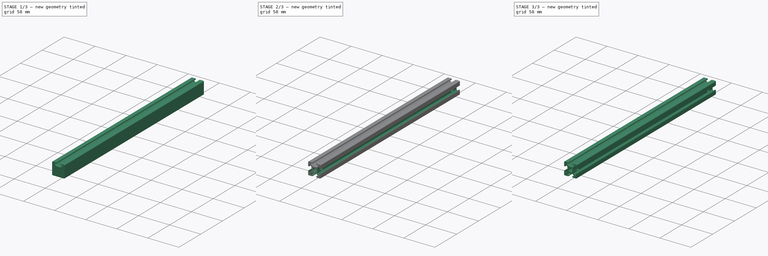
[diagram: build sequence overview — one tinted view per stage of 3, left to right]
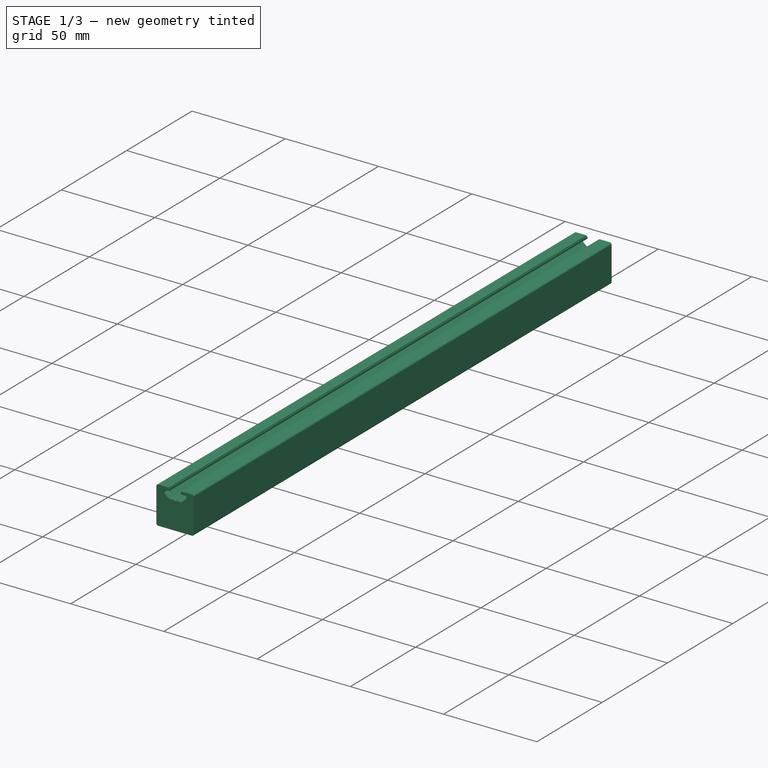
[diagram: stage 1 of 3 — iso view after this stage's code; geometry added in this stage tinted green]
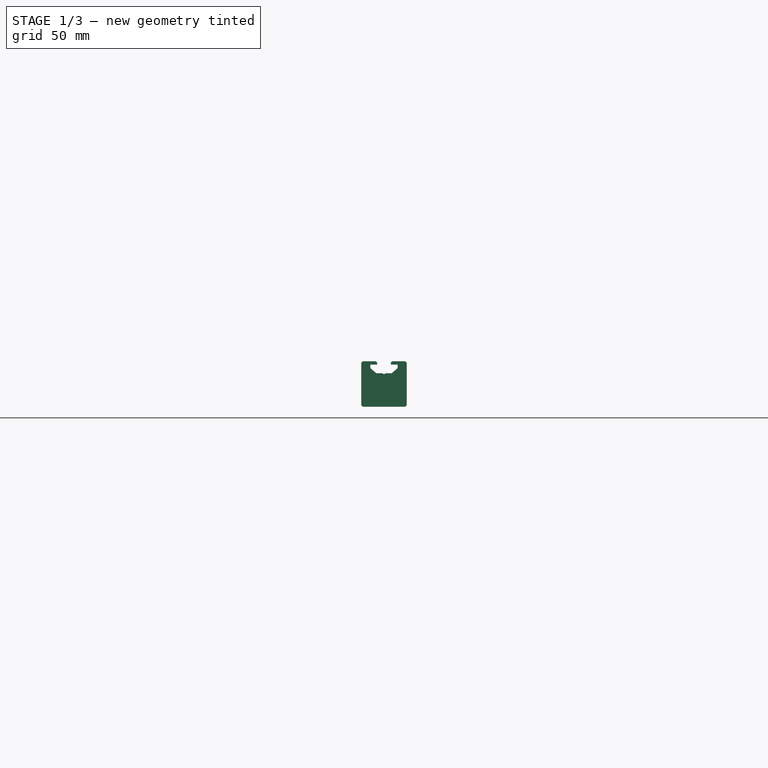
[diagram: stage 1 of 3 — front view after this stage's code; geometry added in this stage tinted green]
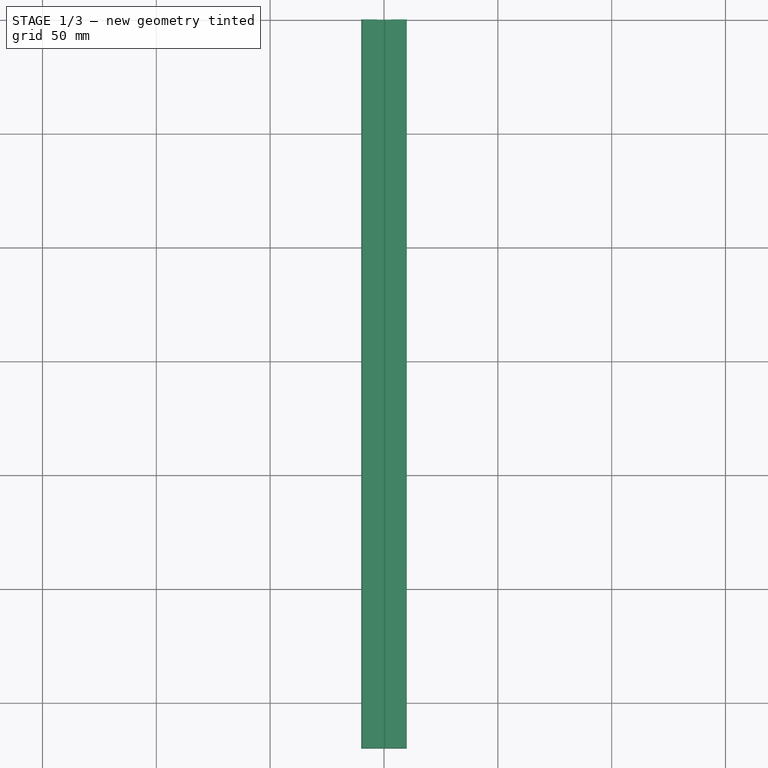
[diagram: stage 1 of 3 — top view after this stage's code; geometry added in this stage tinted green]
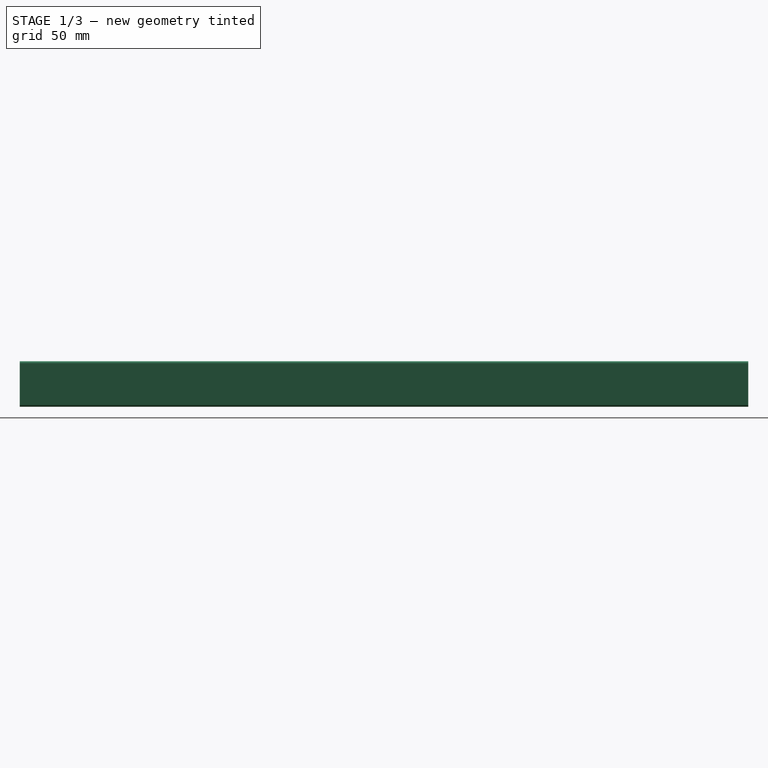
[diagram: stage 1 of 3 — right view after this stage's code; geometry added in this stage tinted green]
FCSTD DOCUMENT  (FreeCAD 0.19R24267 (Git))
Label: tslot32con
License: All rights reserved
LicenseURL: http://en.wikipedia.org/wiki/All_rights_reserved
objects: Sketcher::SketchObject×5, PartDesign::Pocket×5, PartDesign::Pad×1, PartDesign::PolarPattern×1
note: 18 computed .brp shape members not serialized (recipe doc carries the construction recipe); baked Part::Feature solids carry a one-line shape summary decoded from their .brp

FEATURE [Sketcher::SketchObject] Sketch
  FullyConstrained = false
  MapMode = 5
  Placement = pos=(0,0,0) rot=(1,0,0;1.5708rad)
  sketch-geometry (8):
    g0: LineSegment StartX=-9 StartY=10 StartZ=0 EndX=9 EndY=10 EndZ=0
    g1: LineSegment StartX=10 StartY=9 StartZ=0 EndX=10 EndY=-9 EndZ=0
    g2: LineSegment StartX=9 StartY=-10 StartZ=0 EndX=-9 EndY=-10 EndZ=0
    g3: LineSegment StartX=-10 StartY=-9 StartZ=0 EndX=-10 EndY=9 EndZ=0
    g4: ArcOfCircle CenterX=-9 CenterY=9 CenterZ=0 NormalX=0 NormalY=0 NormalZ=1 AngleXU=0 Radius=1 StartAngle=1.5708 EndAngle=3.14159
    g5: ArcOfCircle CenterX=-9 CenterY=-9 CenterZ=0 NormalX=0 NormalY=0 NormalZ=1 AngleXU=0 Radius=1 StartAngle=3.14159 EndAngle=4.71239
    g6: ArcOfCircle CenterX=9 CenterY=-9 CenterZ=0 NormalX=0 NormalY=0 NormalZ=1 AngleXU=0 Radius=1 StartAngle=4.71239 EndAngle=6.28319
    g7: ArcOfCircle CenterX=9 CenterY=9 CenterZ=0 NormalX=0 NormalY=0 NormalZ=1 AngleXU=0 Radius=1 StartAngle=0 EndAngle=1.5708
  constraints (20):
    c: Horizontal(g0)
    c: Horizontal(g2)
    c: Vertical(g1)
    c: Vertical(g3)
    c: Tangent(g0,g4) = 1.5708
    c: Tangent(g3,g4) = 1.5708
    c: Tangent(g3,g5) = 1.5708
    c: Tangent(g2,g5) = 1.5708
    c: Tangent(g2,g6) = 1.5708
    c: Tangent(g1,g6) = 1.5708
    c: Tangent(g0,g7) = 1.5708
    c: Tangent(g1,g7) = 1.5708
    c: Equal(g7,g4)
    c: Equal(g4,g5)
    c: Equal(g5,g6)
    c: Radius(g7) = 1
    c: DistanceX(g1,g3) = -20
    c: DistanceX(g-1,g1) = 10
    c: DistanceY(g0,g2) = -20
    c: DistanceY(g-1,g0) = 10
FEATURE [PartDesign::Pad] Pad
  AllowMultiFace = false
  Direction = (1,1,1)
  Length = 320
  Length2 = 100
  Placement = pos=(0,0,0) rot=(1,0,0;1.5708rad)
  Profile = -> Sketch
  Type = 0
FEATURE [Sketcher::SketchObject] Sketch001
  FullyConstrained = false
  MapMode = 5
  Placement = pos=(0,-320,7.04e-14) rot=(1,0,0;1.5708rad)
  Support = -> [Pad]
  sketch-geometry (17):
    g0: LineSegment StartX=-3.4 StartY=10 StartZ=0 EndX=-3.4 EndY=9.6 EndZ=0
    g1: LineSegment StartX=-3.4 StartY=9.6 StartZ=0 EndX=-3 EndY=9.6 EndZ=0
    g2: LineSegment StartX=-3 StartY=9.6 StartZ=0 EndX=-3 EndY=8.5 EndZ=0
    g3: LineSegment StartX=-3 StartY=8.5 StartZ=0 EndX=-6 EndY=8.5 EndZ=0
    g4: LineSegment StartX=-6 StartY=8.5 StartZ=0 EndX=-6 EndY=7 EndZ=0
    g5: LineSegment StartX=-6 StartY=7 StartZ=0 EndX=-3.35 EndY=4.7 EndZ=0
    g6: LineSegment StartX=-3.35 StartY=4.7 StartZ=0 EndX=-0.65 EndY=4.7 EndZ=0
    g7: LineSegment StartX=-0.65 StartY=4.7 StartZ=0 EndX=0 EndY=4.3 EndZ=0
    g8: LineSegment StartX=0 StartY=4.3 StartZ=0 EndX=0.65 EndY=4.7 EndZ=0
    g9: LineSegment StartX=0.65 StartY=4.7 StartZ=0 EndX=3.35 EndY=4.7 EndZ=0
    g10: LineSegment StartX=3.35 StartY=4.7 StartZ=0 EndX=6 EndY=7 EndZ=0
    g11: LineSegment StartX=6 StartY=7 StartZ=0 EndX=6 EndY=8.5 EndZ=0
    g12: LineSegment StartX=6 StartY=8.5 StartZ=0 EndX=3 EndY=8.5 EndZ=0
    g13: LineSegment StartX=3 StartY=8.5 StartZ=0 EndX=3 EndY=9.6 EndZ=0
    g14: LineSegment StartX=3 StartY=9.6 StartZ=0 EndX=3.4 EndY=9.6 EndZ=0
    g15: LineSegment StartX=3.4 StartY=9.6 StartZ=0 EndX=3.4 EndY=10 EndZ=0
    g16: LineSegment StartX=3.4 StartY=10 StartZ=0 EndX=-3.4 EndY=10 EndZ=0
  constraints (51):
    c: Coincident(g0,g1)
    c: Horizontal(g1)
    c: Coincident(g1,g2)
    c: Vertical(g2)
    c: Coincident(g2,g3)
    c: Horizontal(g3)
    c: Coincident(g3,g4)
    c: Vertical(g4)
    c: Coincident(g4,g5)
    c: Coincident(g5,g6)
    c: Horizontal(g6)
    c: Coincident(g6,g7)
    c: Coincident(g7,g8)
    c: Coincident(g8,g9)
    c: Horizontal(g9)
    c: Coincident(g9,g10)
    c: Coincident(g10,g11)
    c: Coincident(g11,g12)
    c: Horizontal(g12)
    c: Coincident(g12,g13)
    c: Vertical(g13)
    c: Coincident(g13,g14)
    c: Horizontal(g14)
    c: Coincident(g14,g15)
    c: Vertical(g15)
    c: Coincident(g15,g16)
    c: Horizontal(g16)
    c: Vertical(g0)
    c: PointOnObject(g7,g-2)
    c: Coincident(g0,g16)
    c: DistanceX(g2,g12) = 6
    c: DistanceX(g-1,g12) = 3
    c: Vertical(g11)
    c: DistanceY(g4) = -1.5
    c: DistanceY(g11) = 1.5
    c: DistanceY(g13) = 1.1
    c: DistanceY(g2) = -1.1
    c: DistanceY(g15) = 0.4
    c: DistanceY(g0) = -0.4
    c: DistanceY(g-1,g15) = 10
    c: DistanceX(g1) = 0.4
    c: DistanceX(g14) = 0.4
    c: DistanceX(g3) = -3
    c: DistanceX(g12) = -3
    c: DistanceX(g6) = 2.7
    c: DistanceX(g9) = 2.7
    c: DistanceX(g6,g8) = 1.3
    c: DistanceX(g-1,g6) = -0.65
    c: DistanceY(g8) = 0.4
    c: DistanceY(g7) = -0.4
    c: DistanceY(g15,g9) = -5.3
FEATURE [PartDesign::Pocket] Pocket
  AllowMultiFace = false
  Length = 320
  Length2 = 100
  Placement = pos=(0,0,0) rot=(1,0,0;1.5708rad)
  Profile = -> Sketch001
  Type = 0
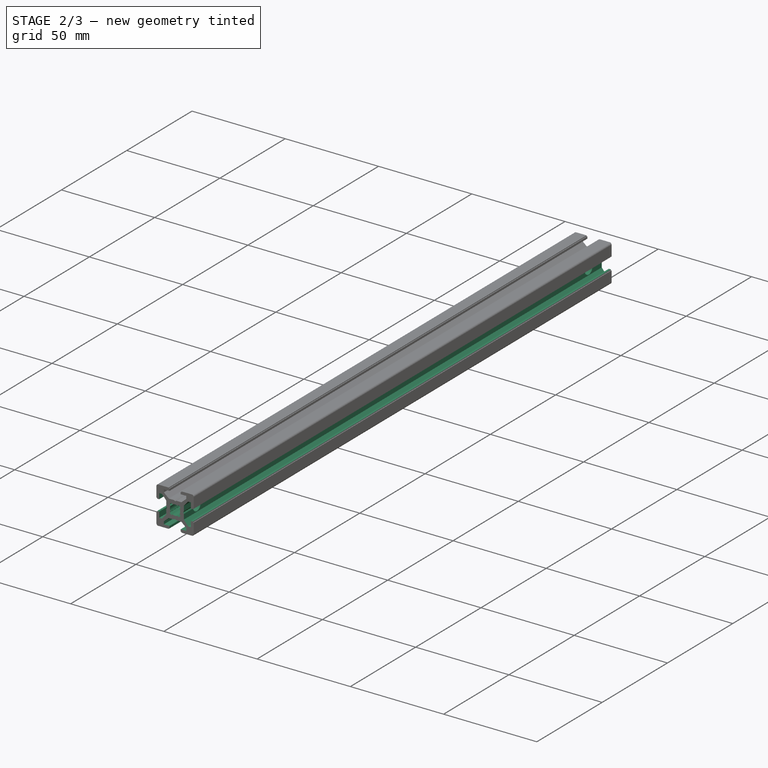
[diagram: stage 2 of 3 — iso view after this stage's code; geometry added in this stage tinted green]
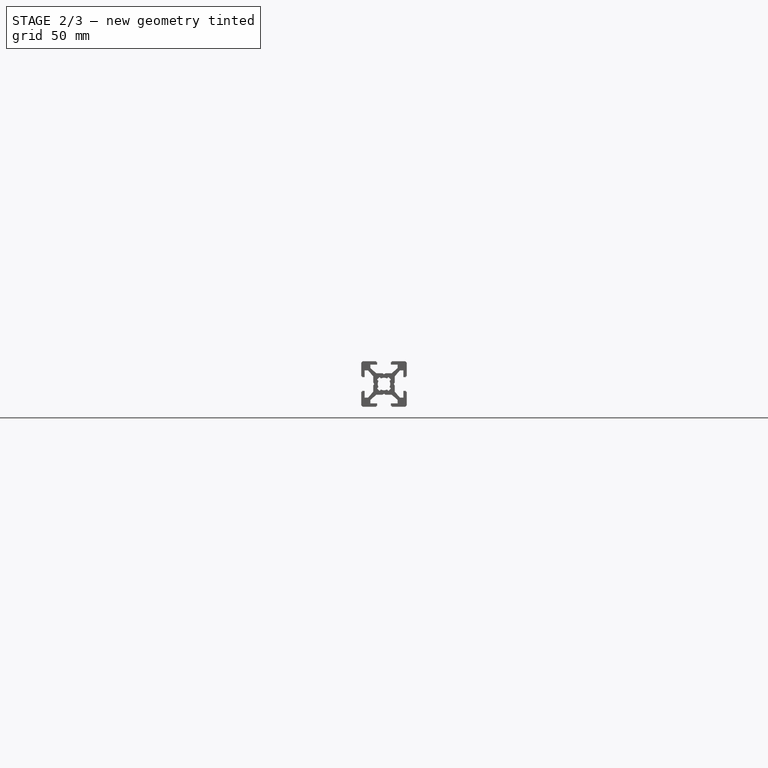
[diagram: stage 2 of 3 — front view after this stage's code; geometry added in this stage tinted green]
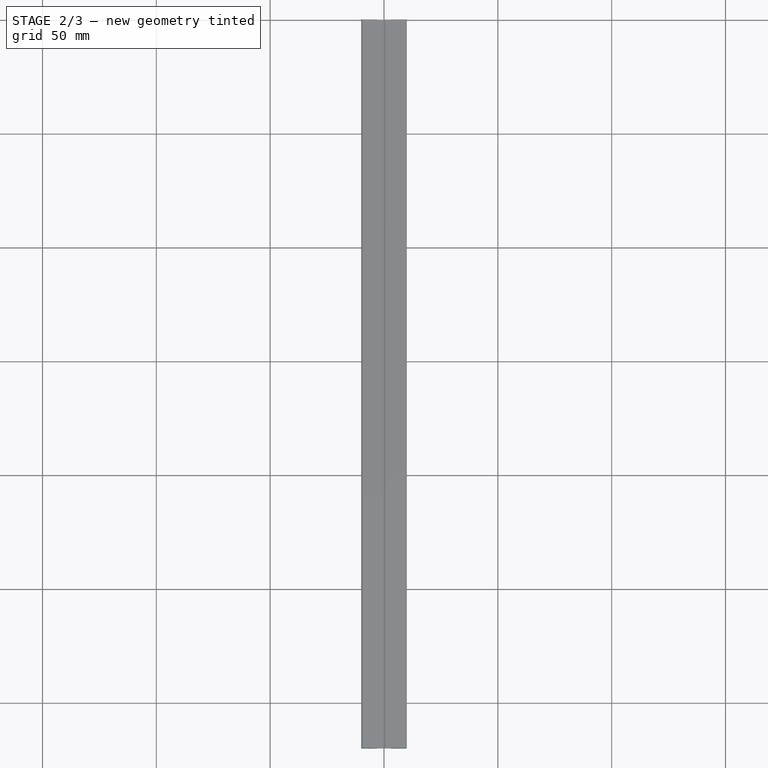
[diagram: stage 2 of 3 — top view after this stage's code; geometry added in this stage tinted green]
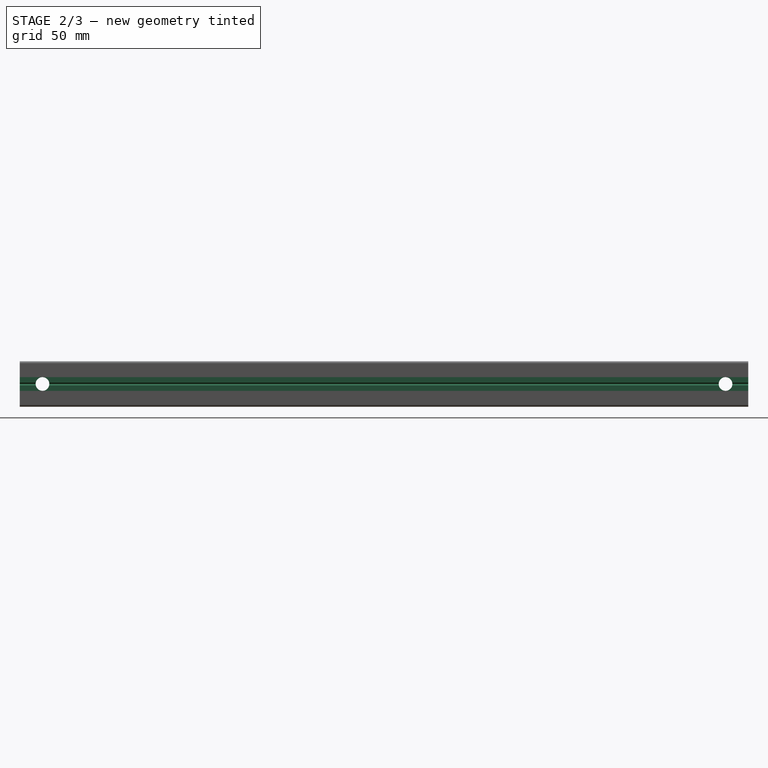
[diagram: stage 2 of 3 — right view after this stage's code; geometry added in this stage tinted green]
FEATURE [PartDesign::PolarPattern] PolarPattern
  Angle = 360
  Axis = -> Sketch001 [N_Axis]
  Occurrences = 4
  Originals = -> [Pocket]
  Placement = pos=(0,0,0) rot=(1,0,0;1.5708rad)
FEATURE [Sketcher::SketchObject] Sketch002
  FullyConstrained = false
  MapMode = 5
  Placement = pos=(0,-320,7.04e-14) rot=(1,0,0;1.5708rad)
  Support = -> [PolarPattern]
  sketch-geometry (20):
    g0: ArcOfCircle CenterX=0 CenterY=0 CenterZ=0 NormalX=0 NormalY=0 NormalZ=1 AngleXU=0 Radius=2.75 StartAngle=1.06162 EndAngle=2.07997
    g1: ArcOfCircle CenterX=0 CenterY=0 CenterZ=0 NormalX=0 NormalY=0 NormalZ=1 AngleXU=0 Radius=2.75 StartAngle=2.63242 EndAngle=3.65076
    g2: ArcOfCircle CenterX=0 CenterY=0 CenterZ=0 NormalX=0 NormalY=0 NormalZ=1 AngleXU=0 Radius=2.75 StartAngle=4.20322 EndAngle=5.22156
    g3: ArcOfCircle CenterX=0 CenterY=0 CenterZ=0 NormalX=0 NormalY=0 NormalZ=1 AngleXU=0 Radius=2.75 StartAngle=5.77401 EndAngle=6.79236
    g4: LineSegment StartX=-2.40116 StartY=1.3405 StartZ=0 EndX=-3.0052 EndY=1.94454 EndZ=0
    g5: LineSegment StartX=-3.0052 StartY=1.94454 StartZ=0 EndX=-1.94454 EndY=3.0052 EndZ=0
    g6: LineSegment StartX=-1.94454 StartY=3.0052 StartZ=0 EndX=-1.3405 EndY=2.40116 EndZ=0
    g7: LineSegment StartX=-2.47487 StartY=2.47487 StartZ=0 EndX=0 EndY=0 EndZ=0
    g8: LineSegment StartX=0 StartY=0 StartZ=0 EndX=-2.47487 EndY=-2.47487 EndZ=0
    g9: LineSegment StartX=0 StartY=0 StartZ=0 EndX=2.47487 EndY=-2.47487 EndZ=0
    g10: LineSegment StartX=0 StartY=0 StartZ=0 EndX=2.47487 EndY=2.47487 EndZ=0
    g11: LineSegment StartX=2.40116 StartY=1.3405 StartZ=0 EndX=3.0052 EndY=1.94454 EndZ=0
    g12: LineSegment StartX=3.0052 StartY=1.94454 StartZ=0 EndX=1.94454 EndY=3.0052 EndZ=0
    g13: LineSegment StartX=1.94454 StartY=3.0052 StartZ=0 EndX=1.3405 EndY=2.40116 EndZ=0
    g14: LineSegment StartX=2.40116 StartY=-1.3405 StartZ=0 EndX=3.0052 EndY=-1.94454 EndZ=0
    g15: LineSegment StartX=3.0052 StartY=-1.94454 StartZ=0 EndX=1.94454 EndY=-3.0052 EndZ=0
    g16: LineSegment StartX=1.94454 StartY=-3.0052 StartZ=0 EndX=1.3405 EndY=-2.40116 EndZ=0
    g17: LineSegment StartX=-1.3405 StartY=-2.40116 StartZ=0 EndX=-1.94454 EndY=-3.0052 EndZ=0
    g18: LineSegment StartX=-1.94454 StartY=-3.0052 StartZ=0 EndX=-3.0052 EndY=-1.94454 EndZ=0
    g19: LineSegment StartX=-3.0052 StartY=-1.94454 StartZ=0 EndX=-2.40116 EndY=-1.3405 EndZ=0
  constraints (60):
    c: Coincident(g3,g-1)
    c: Coincident(g0,g-1)
    c: Coincident(g1,g-1)
    c: Coincident(g2,g-1)
    c: Equal(g0,g3)
    c: Equal(g3,g2)
    c: Equal(g2,g1)
    c: Radius(g0) = 2.75
    c: Coincident(g4,g5)
    c: Coincident(g5,g6)
    c: Perpendicular(g5,g6) = 4.71239
    c: Perpendicular(g4,g5) = 4.71239
    c: Coincident(g0,g6)
    c: Coincident(g1,g4)
    c: Coincident(g7,g-1)
    c: Angle(g-2,g7) = 0.785398
    c: PointOnObject(g7,g5)
    c: Parallel(g7,g6)
    c: Coincident(g8,g-1)
    c: Angle(g7,g8) = 1.5708
    c: Coincident(g9,g-1)
    c: Angle(g8,g9) = 1.5708
    c: Coincident(g10,g-1)
    c: Angle(g9,g10) = 1.5708
    c: Coincident(g11,g12)
    c: Coincident(g12,g13)
    c: Perpendicular(g12,g13) = 1.5708
    c: Perpendicular(g11,g12) = 1.5708
    c: Parallel(g10,g13)
    c: PointOnObject(g10,g12)
    c: Equal(g7,g10)
    c: Equal(g10,g8)
    c: Equal(g8,g9)
    c: Distance(g7) = 3.5
    c: Coincident(g0,g13)
    c: Coincident(g11,g3)
    c: Coincident(g14,g15)
    c: Coincident(g15,g16)
    c: Perpendicular(g15,g16) = 4.71239
    c: Perpendicular(g14,g15) = 4.71239
    c: Parallel(g9,g14)
    c: Coincident(g3,g14)
    c: PointOnObject(g9,g15)
    c: Coincident(g16,g2)
    c: Coincident(g17,g18)
    c: Coincident(g18,g19)
    c: Perpendicular(g18,g19) = 4.71239
    c: Perpendicular(g17,g18) = 4.71239
    c: Parallel(g8,g19)
    c: PointOnObject(g8,g18)
    c: Coincident(g19,g1)
    c: Coincident(g2,g17)
    c: Equal(g12,g5)
    c: Equal(g5,g18)
    c: Equal(g18,g15)
    c: Distance(g12) = 1.5
    c: Distance(g11,g10) = 0.75
    c: Distance(g7,g5) = 0.75
    c: Distance(g8,g17) = 0.75
    c: Distance(g9,g14) = 0.75
FEATURE [PartDesign::Pocket] Pocket001
  AllowMultiFace = false
  Length = 320
  Length2 = 100
  Placement = pos=(0,0,0) rot=(1,0,0;1.5708rad)
  Profile = -> Sketch002
  Type = 0
FEATURE [Sketcher::SketchObject] Sketch003
  FullyConstrained = false
  MapMode = 5
  Placement = pos=(10,0,0) rot=(0.707107,0,0.707107;3.14159rad)
  Support = -> [Pocket001]
  sketch-geometry (2):
    g0: Circle CenterX=0 CenterY=10 CenterZ=0 NormalX=0 NormalY=0 NormalZ=1 AngleXU=0 Radius=3
    g1: Circle CenterX=0 CenterY=310 CenterZ=0 NormalX=0 NormalY=0 NormalZ=1 AngleXU=0 Radius=3
  constraints (6):
    c: DistanceY(g-1,g0) = 10
    c: DistanceX(g0,g-1) = 0
    c: Radius(g0) = 3
    c: DistanceY(g-1,g1) = 310
    c: DistanceX(g1,g-1) = 0
    c: Radius(g1) = 3
FEATURE [PartDesign::Pocket] Pocket002
  AllowMultiFace = false
  Length = 20
  Length2 = 100
  Placement = pos=(0,0,0) rot=(1,0,0;1.5708rad)
  Profile = -> Sketch003
  Type = 0
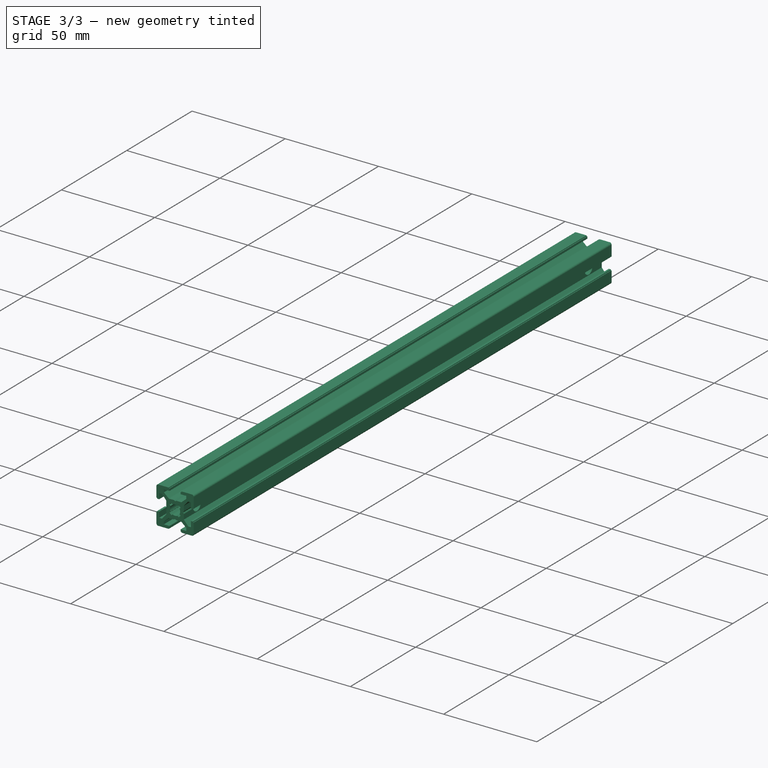
[diagram: stage 3 of 3 — iso view after this stage's code; geometry added in this stage tinted green]
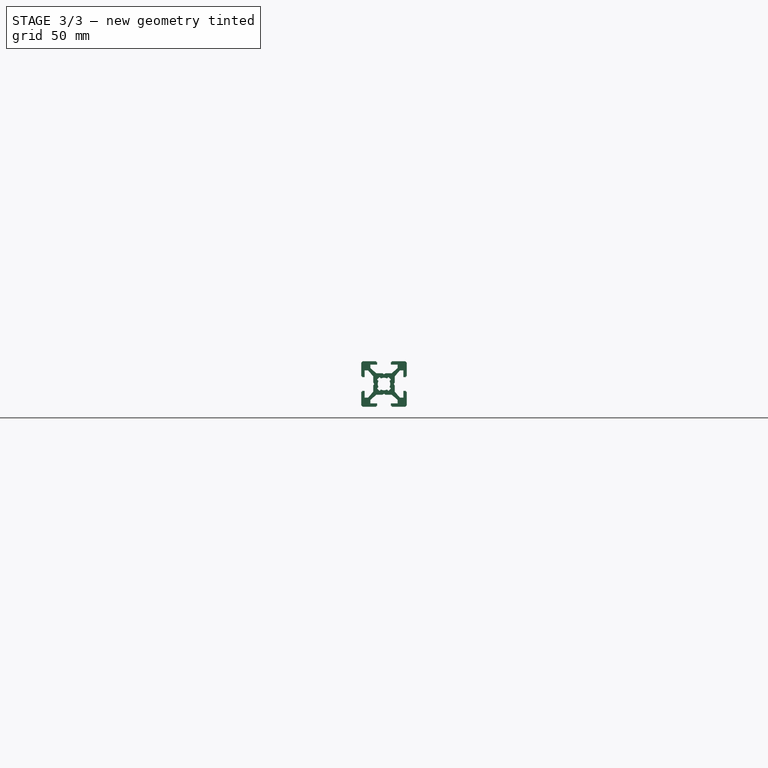
[diagram: stage 3 of 3 — front view after this stage's code; geometry added in this stage tinted green]
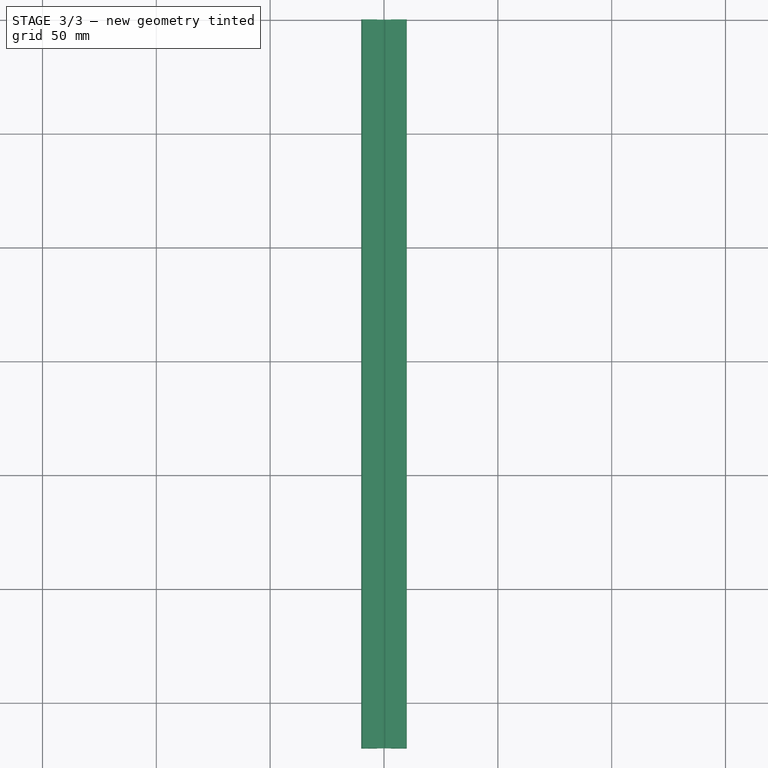
[diagram: stage 3 of 3 — top view after this stage's code; geometry added in this stage tinted green]
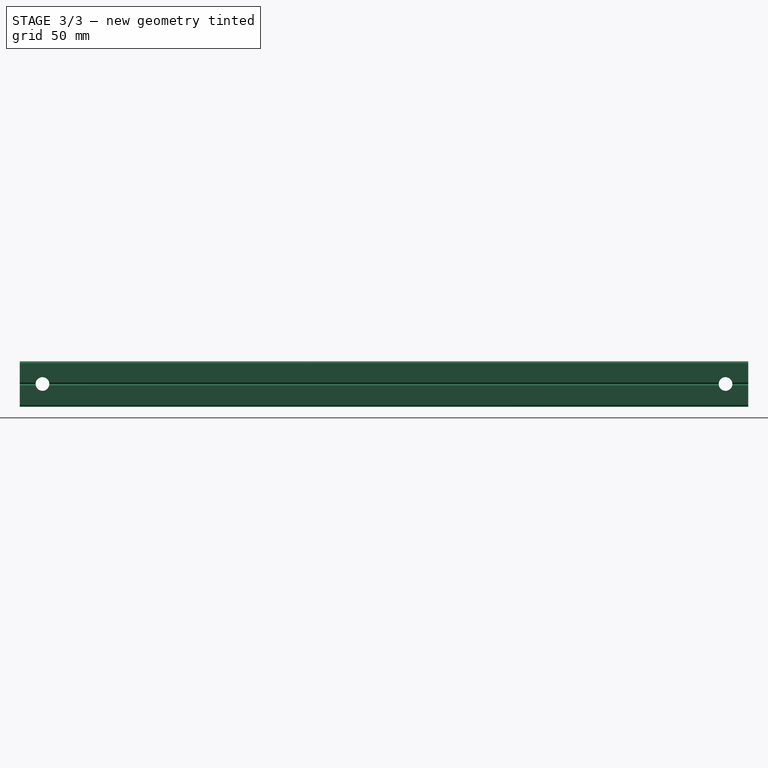
[diagram: stage 3 of 3 — right view after this stage's code; geometry added in this stage tinted green]
FEATURE [Sketcher::SketchObject] Sketch004
  FullyConstrained = false
  MapMode = 5
  Placement = pos=(-10,0,0) rot=(0.707107,0,-0.707107;3.14159rad)
  Support = -> [Pocket002]
  sketch-geometry (2):
    g0: Circle CenterX=0 CenterY=10 CenterZ=0 NormalX=0 NormalY=0 NormalZ=1 AngleXU=0 Radius=5
    g1: Circle CenterX=0 CenterY=310 CenterZ=0 NormalX=0 NormalY=0 NormalZ=1 AngleXU=0 Radius=5
  constraints (6):
    c: DistanceX(g0,g-1) = 0
    c: DistanceX(g1,g-1) = 0
    c: Radius(g0) = 5
    c: Radius(g1) = 5
    c: DistanceY(g-1,g0) = 10
    c: DistanceY(g-1,g1) = 310
FEATURE [PartDesign::Pocket] Pocket003
  AllowMultiFace = false
  Length = 3
  Length2 = 100
  Placement = pos=(0,0,0) rot=(1,0,0;1.5708rad)
  Profile = -> Sketch004
  Type = 0
FEATURE [PartDesign::Pocket] Pocket004
  AllowMultiFace = false
  Length = 3
  Length2 = 100
  Placement = pos=(0,0,0) rot=(1,0,0;1.5708rad)
  Profile = -> Sketch004
  Type = 0
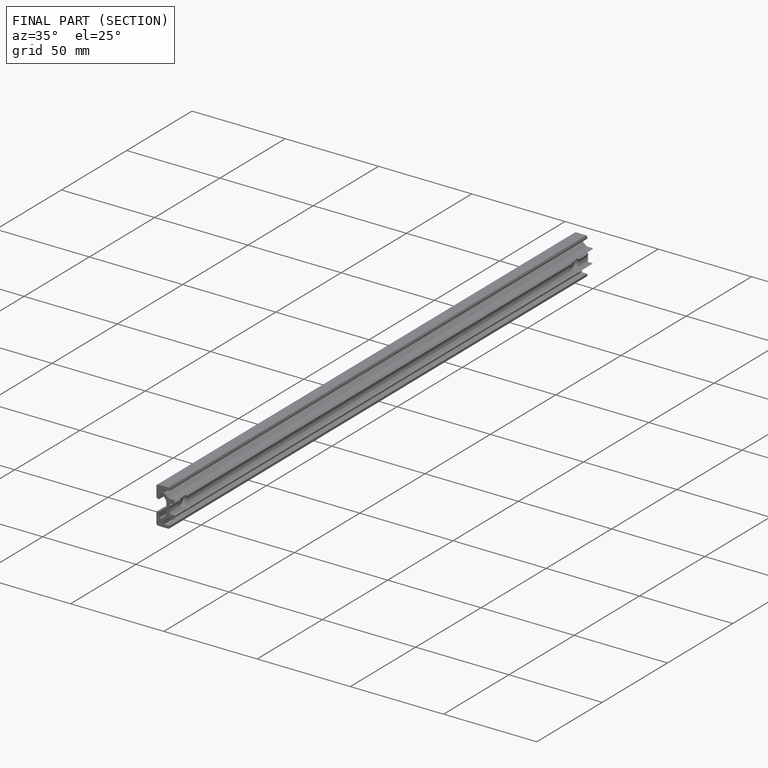
[diagram: finished part — half-section view (interior)]
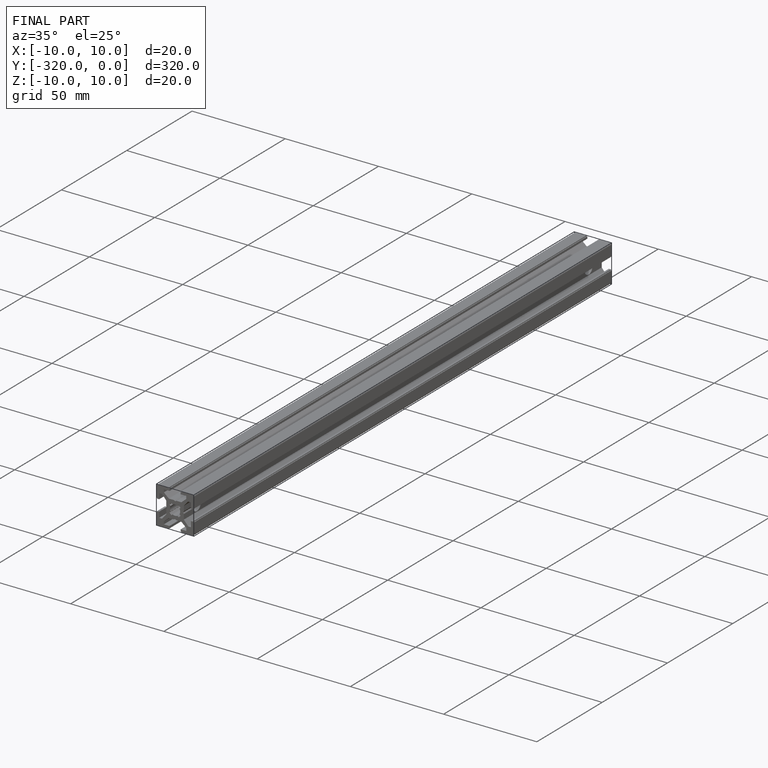
[diagram: finished part — iso view with bounding-box wireframe]
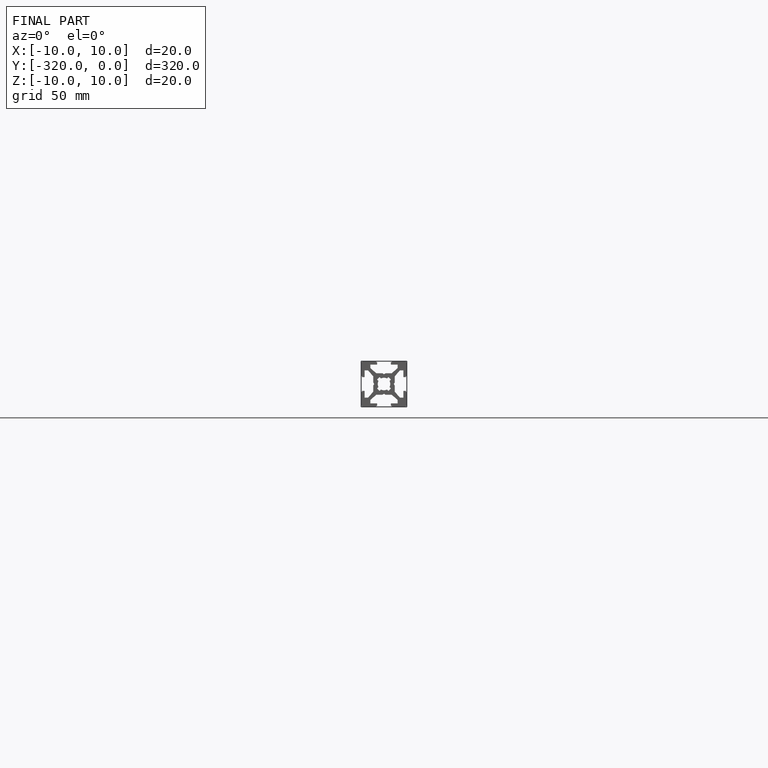
[diagram: finished part — front view with bounding-box wireframe]
